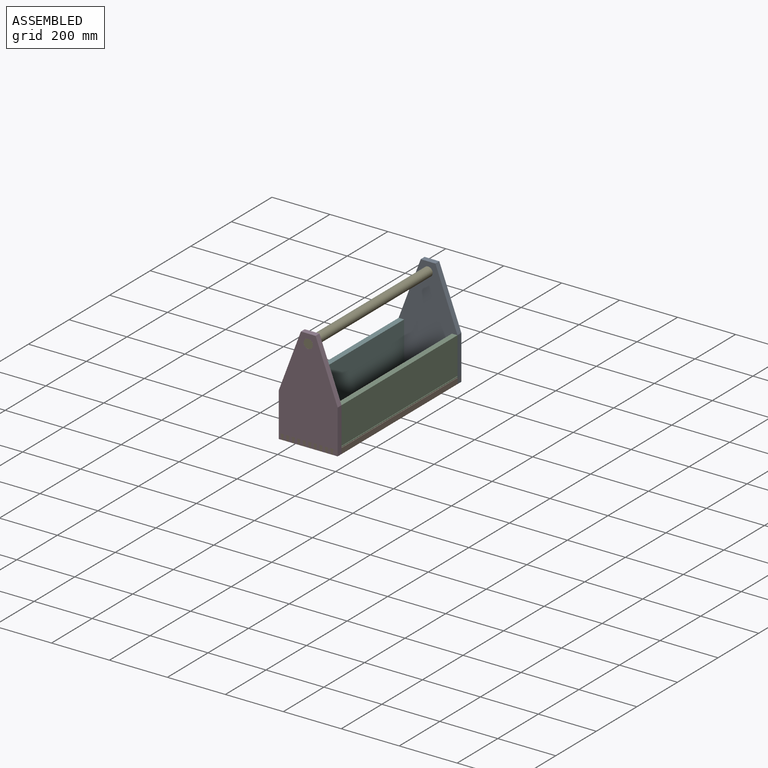
[diagram: assembled view]
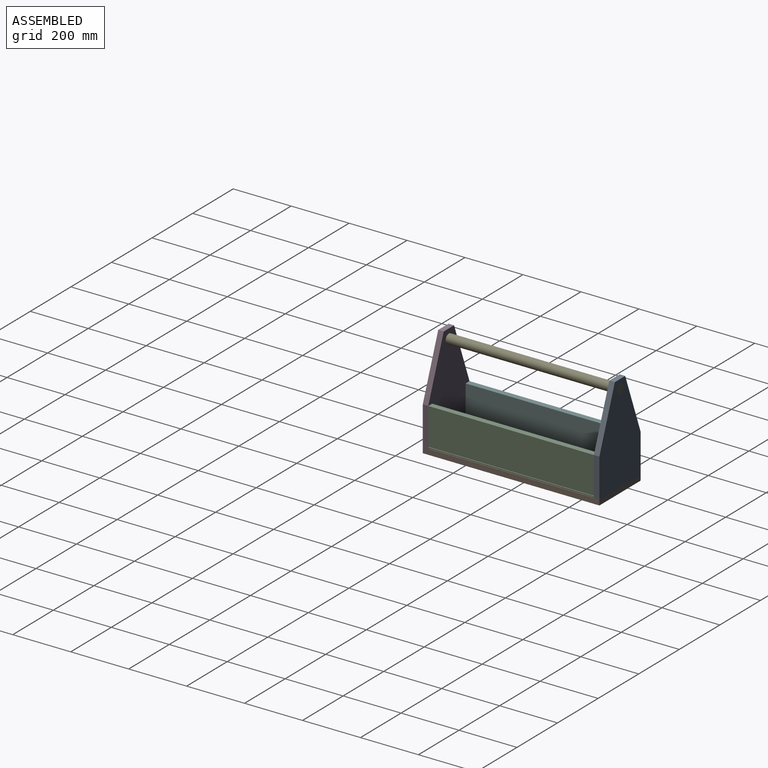
[diagram: assembled view, second angle]
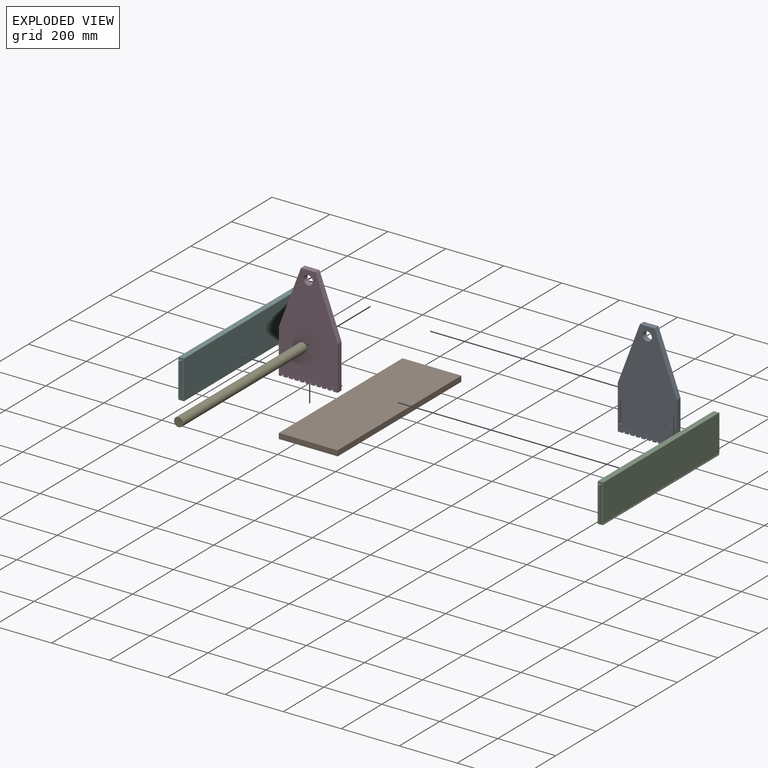
[diagram: exploded view]
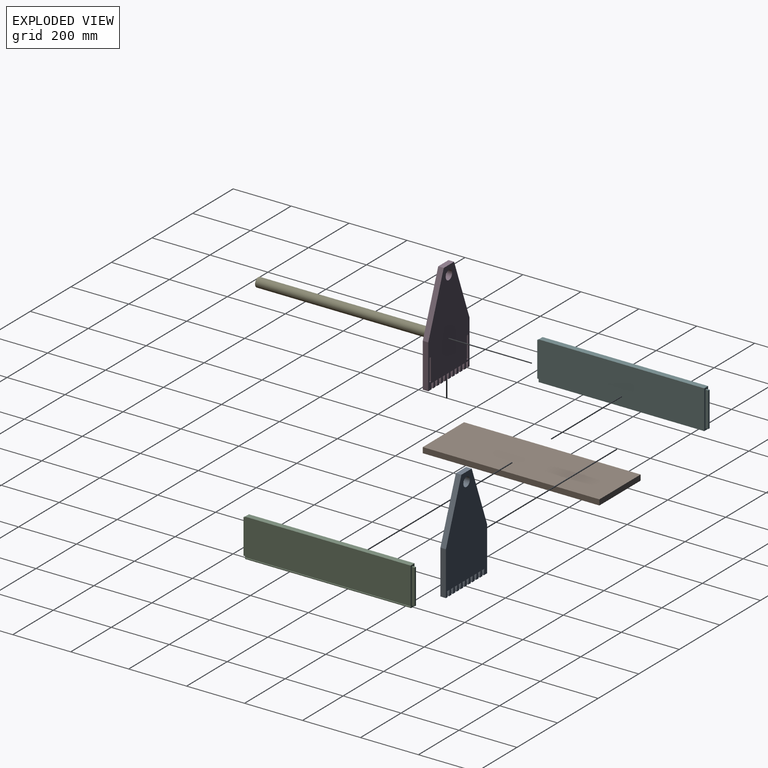
[diagram: exploded view, second angle]
ASSEMBLY  parts=6 mates=8
PART A: 59 faces, bbox 203.2x19.1x355.6 mm
  f0: plane 19.05x16.89mm, normal (0,0,-1), area 321.8mm2, adj f10,f12,f18,f57
  f1: plane 19.05x12.7mm, normal (0,0,-1), area 241.9mm2, adj f10,f18,f54,f56
  f2: plane 19.05x12.7mm, normal (0,0,-1), area 241.9mm2, adj f10,f18,f51,f53
  f3: plane 19.05x12.7mm, normal (0,0,-1), area 241.9mm2, adj f10,f18,f48,f50
  f4: plane 19.05x12.7mm, normal (0,0,-1), area 241.9mm2, adj f10,f18,f45,f47
  f5: plane 19.05x12.7mm, normal (0,0,-1), area 241.9mm2, adj f10,f18,f42,f44
  f6: plane 19.05x12.7mm, normal (0,0,-1), area 241.9mm2, adj f10,f18,f39,f41
  f7: plane 19.05x12.7mm, normal (0,0,-1), area 241.9mm2, adj f10,f18,f36,f38
  f8: plane 19.05x12.7mm, normal (0,0,-1), area 241.9mm2, adj f10,f18,f33,f35
  f9: plane 19.05x12.7mm, normal (0,0,-1), area 241.9mm2, adj f10,f18,f30,f32
  f10: plane 355.6x203.2mm, normal (0,1,0), area 53294.9mm2, adj f0,f1,f2,f3,f4,f5,f6,f7
  f11: plane 19.05x8.51mm, normal (0,0,-1), area 162.1mm2, adj f10,f17,f18,f29
  f12: plane 152.4x19.05mm, normal (1,0,0), area 2903.2mm2, adj f0,f10,f13,f18
  f13: plane 203.2x76.2mm, normal (0.94,0,0.35), area 4134.2mm2, adj f10,f12,f14,f18
  f14: plane 50.8x19.05mm, normal (0,0,1), area 967.7mm2, adj f10,f13,f15,f18
  f15: plane 203.2x76.2mm, normal (-0.94,0,0.35), area 4134.2mm2, adj f10,f14,f17,f18
  f16: cylinder r=15.88mm len=31.75mm, axis (0,1,0), area 1900.2mm2, adj f10,f18
  f17: plane 152.4x19.05mm, normal (-1,0,0), area 2903.2mm2, adj f10,f11,f15,f18
  f18: plane 355.6x203.2mm, normal (0,-1,0), area 54262.6mm2, adj f0,f1,f2,f3,f4,f5,f6,f7
  f19: plane 9.53x6.35mm, normal (0,0,-1), area 60.5mm2, adj f10,f20,f22,f23
  f20: plane 76.2x9.53mm, normal (-1,0,0), area 725.8mm2, adj f10,f19,f21,f23
  f21: plane 9.53x6.35mm, normal (0,0,1), area 60.5mm2, adj f10,f20,f22,f23
  f22: plane 76.2x9.53mm, normal (1,0,0), area 725.8mm2, adj f10,f19,f21,f23
  f23: plane 76.2x6.35mm, normal (0,1,0), area 483.9mm2, adj f19,f20,f21,f22
  f24: plane 9.53x6.35mm, normal (0,0,-1), area 60.5mm2, adj f10,f25,f27,f28
  f25: plane 76.2x9.53mm, normal (-1,0,0), area 725.8mm2, adj f10,f24,f26,f28
  f26: plane 9.53x6.35mm, normal (0,0,1), area 60.5mm2, adj f10,f25,f27,f28
  f27: plane 76.2x9.53mm, normal (1,0,0), area 725.8mm2, adj f10,f24,f26,f28
  f28: plane 76.2x6.35mm, normal (0,1,0), area 483.9mm2, adj f24,f25,f26,f27
  f29: plane 19.05x19.05mm, normal (0.99,0,0.14), area 366.5mm2, adj f10,f11,f18,f31
  f30: plane 19.05x19.05mm, normal (-0.99,0,0.14), area 366.5mm2, adj f9,f10,f18,f31
  f31: plane 19.05x11.7mm, normal (0,0,-1), area 223mm2, adj f10,f18,f29,f30
  f32: plane 19.05x19.05mm, normal (0.99,0,0.14), area 366.5mm2, adj f9,f10,f18,f34
  f33: plane 19.05x19.05mm, normal (-0.99,0,0.14), area 366.5mm2, adj f8,f10,f18,f34
  f34: plane 19.05x11.7mm, normal (0,0,-1), area 223mm2, adj f10,f18,f32,f33
  f35: plane 19.05x19.05mm, normal (0.99,0,0.14), area 366.5mm2, adj f8,f10,f18,f37
  f36: plane 19.05x19.05mm, normal (-0.99,0,0.14), area 366.5mm2, adj f7,f10,f18,f37
  f37: plane 19.05x11.7mm, normal (0,0,-1), area 223mm2, adj f10,f18,f35,f36
  f38: plane 19.05x19.05mm, normal (0.99,0,0.14), area 366.5mm2, adj f7,f10,f18,f40
  f39: plane 19.05x19.05mm, normal (-0.99,0,0.14), area 366.5mm2, adj f6,f10,f18,f40
  f40: plane 19.05x11.7mm, normal (0,0,-1), area 223mm2, adj f10,f18,f38,f39
  f41: plane 19.05x19.05mm, normal (0.99,0,0.14), area 366.5mm2, adj f6,f10,f18,f43
  f42: plane 19.05x19.05mm, normal (-0.99,0,0.14), area 366.5mm2, adj f5,f10,f18,f43
  f43: plane 19.05x11.7mm, normal (0,0,-1), area 223mm2, adj f10,f18,f41,f42
  f44: plane 19.05x19.05mm, normal (0.99,0,0.14), area 366.5mm2, adj f5,f10,f18,f46
  f45: plane 19.05x19.05mm, normal (-0.99,0,0.14), area 366.5mm2, adj f4,f10,f18,f46
  f46: plane 19.05x11.7mm, normal (0,0,-1), area 223mm2, adj f10,f18,f44,f45
  f47: plane 19.05x19.05mm, normal (0.99,0,0.14), area 366.5mm2, adj f4,f10,f18,f49
  f48: plane 19.05x19.05mm, normal (-0.99,0,0.14), area 366.5mm2, adj f3,f10,f18,f49
  f49: plane 19.05x11.7mm, normal (0,0,-1), area 223mm2, adj f10,f18,f47,f48
  f50: plane 19.05x19.05mm, normal (0.99,0,0.14), area 366.5mm2, adj f3,f10,f18,f52
  f51: plane 19.05x19.05mm, normal (-0.99,0,0.14), area 366.5mm2, adj f2,f10,f18,f52
  f52: plane 19.05x11.7mm, normal (0,0,-1), area 223mm2, adj f10,f18,f50,f51
  f53: plane 19.05x19.05mm, normal (0.99,0,0.14), area 366.5mm2, adj f2,f10,f18,f55
  f54: plane 19.05x19.05mm, normal (-0.99,0,0.14), area 366.5mm2, adj f1,f10,f18,f55
  f55: plane 19.05x11.7mm, normal (0,0,-1), area 223mm2, adj f10,f18,f53,f54
  f56: plane 19.05x19.05mm, normal (0.99,0,0.14), area 366.5mm2, adj f1,f10,f18,f58
  f57: plane 19.05x19.05mm, normal (-0.99,0,0.14), area 366.5mm2, adj f0,f10,f18,f58
  f58: plane 19.05x11.7mm, normal (0,0,-1), area 223mm2, adj f10,f18,f56,f57
PART B: 6 faces, bbox 19.1x609.6x203.2 mm
  f0: plane 203.2x19.05mm, normal (0,-1,0), area 3871mm2, adj f1,f3,f4,f5
  f1: plane 609.6x19.05mm, normal (0,0,-1), area 11612.9mm2, adj f0,f2,f4,f5
  f2: plane 203.2x19.05mm, normal (0,1,0), area 3871mm2, adj f1,f3,f4,f5
  f3: plane 609.6x19.05mm, normal (0,0,1), area 11612.9mm2, adj f0,f2,f4,f5
  f4: plane 609.6x203.2mm, normal (1,0,0), area 123870.7mm2, adj f0,f1,f2,f3
  f5: plane 609.6x203.2mm, normal (-1,0,0), area 123870.7mm2, adj f0,f1,f2,f3
PART C: 18 faces, bbox 19.1x590.6x133.4 mm
  f0: plane 571.5x15.88mm, normal (0,0,-1), area 9072.6mm2, adj f1,f3,f5,f16
  f1: plane 133.35x19.05mm, normal (0,1,0), area 1769.9mm2, adj f0,f2,f4,f5,f7,f8,f9,f10
  f2: plane 571.5x127mm, normal (1,0,0), area 72580.5mm2, adj f1,f3,f4,f17
  f3: plane 133.35x19.05mm, normal (0,-1,0), area 1769.9mm2, adj f0,f2,f4,f5,f11,f12,f13,f14
  f4: plane 571.5x19.05mm, normal (0,0,1), area 10887.1mm2, adj f1,f2,f3,f5
  f5: plane 571.5x133.35mm, normal (-1,0,0), area 76209.5mm2, adj f0,f1,f3,f4
  f6: plane 120.65x6.35mm, normal (0,1,0), area 766.1mm2, adj f7,f8,f9,f10
  f7: plane 120.65x9.53mm, normal (1,0,0), area 1149.2mm2, adj f1,f6,f8,f10
  f8: plane 9.53x6.35mm, normal (0,0,-1), area 60.5mm2, adj f1,f6,f7,f9
  f9: plane 120.65x9.53mm, normal (-1,0,0), area 1149.2mm2, adj f1,f6,f8,f10
  f10: plane 9.53x6.35mm, normal (0,0,1), area 60.5mm2, adj f1,f6,f7,f9
  f11: plane 9.53x6.35mm, normal (0,0,1), area 60.5mm2, adj f3,f12,f14,f15
  f12: plane 120.65x9.53mm, normal (-1,0,0), area 1149.2mm2, adj f3,f11,f13,f15
  f13: plane 9.53x6.35mm, normal (0,0,-1), area 60.5mm2, adj f3,f12,f14,f15
  f14: plane 120.65x9.53mm, normal (1,0,0), area 1149.2mm2, adj f3,f11,f13,f15
  f15: plane 120.65x6.35mm, normal (0,-1,0), area 766.1mm2, adj f11,f12,f13,f14
  f16: cylinder r=3.17mm len=571.5mm, axis (0,-1,0), area 5700.5mm2, adj f0,f1,f3,f17
  f17: plane 571.5x3.18mm, normal (0,0,-1), area 1814.5mm2, adj f1,f2,f3,f16
PART D: same geometry as A
PART E: 3 faces, bbox 609.6x31.8x31.8 mm
  f0: cylinder r=15.88mm len=609.6mm, axis (-1,0,0), area 60804.9mm2, adj f1,f2
  f1: plane 31.75x31.75mm, normal (1,0,0), area 791.7mm2, adj f0
  f2: plane 31.75x31.75mm, normal (-1,0,0), area 791.7mm2, adj f0
PART F: same geometry as C
PLACE A rot(axis=(0,0,1),180deg) t=(-141.18,457.59,-91.4)mm
PLACE B rot(axis=(0,1,0),90deg) t=(-242.78,171.84,-72.35)mm
PLACE C t=(-39.58,171.84,-72.35)mm
PLACE D rot(axis=(0.1,-0.99,-0.14),0deg) t=(-141.18,-113.91,-91.4)mm fixed
PLACE E rot(axis=(0.58,-0.58,-0.58),120deg) t=(-141.18,171.84,232.45)mm
PLACE F rot(axis=(0,0,1),180deg) t=(-242.78,171.84,-72.35)mm
MATE fastened F.f2 <-> D.f17  axis (-1,0,0) through (-242.78,-113.91,61)mm
MATE planar B.f4 <-> D.f11  axis (0,0,-1) through (-141.18,171.84,-91.4)mm
MATE planar A.f17 <-> B.f3  axis (1,0,0) through (-39.58,467.11,-15.2)mm
MATE fastened C.f2 <-> D.f12  axis (1,0,0) through (-39.58,-113.91,61)mm
MATE planar A.f11 <-> B.f4  axis (0,0,-1) through (-43.84,467.11,-91.4)mm
MATE planar A.f18 <-> B.f2  axis (0,1,0) through (-242.78,476.64,-15.2)mm
MATE fastened E.f0 <-> D.f16  axis (0,-1,0) through (-141.18,-132.96,232.45)mm
MATE planar B.f0 <-> D.f18  axis (0,-1,0) through (-141.18,-132.96,-81.87)mm
